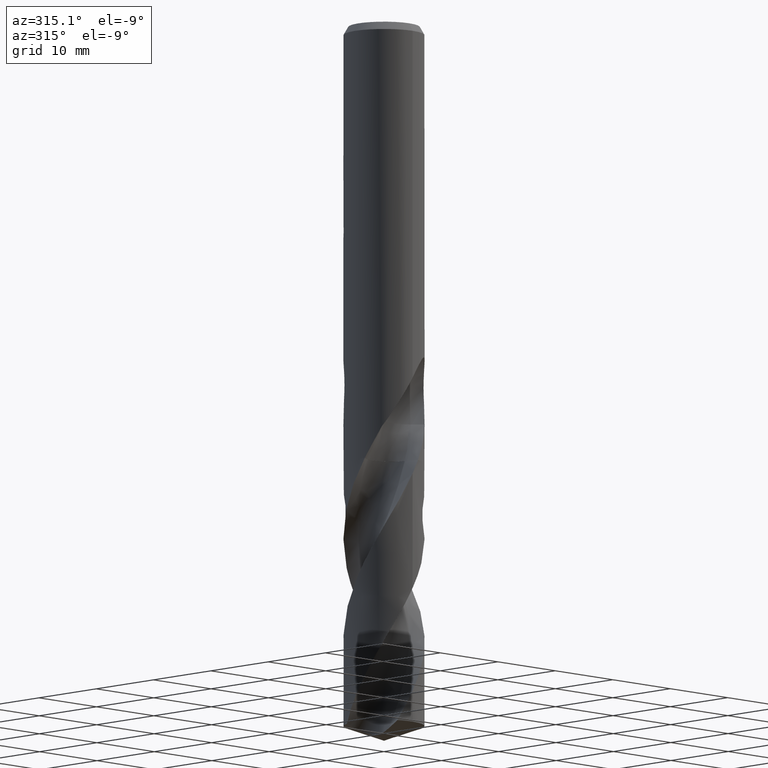
[diagram: clean part render]
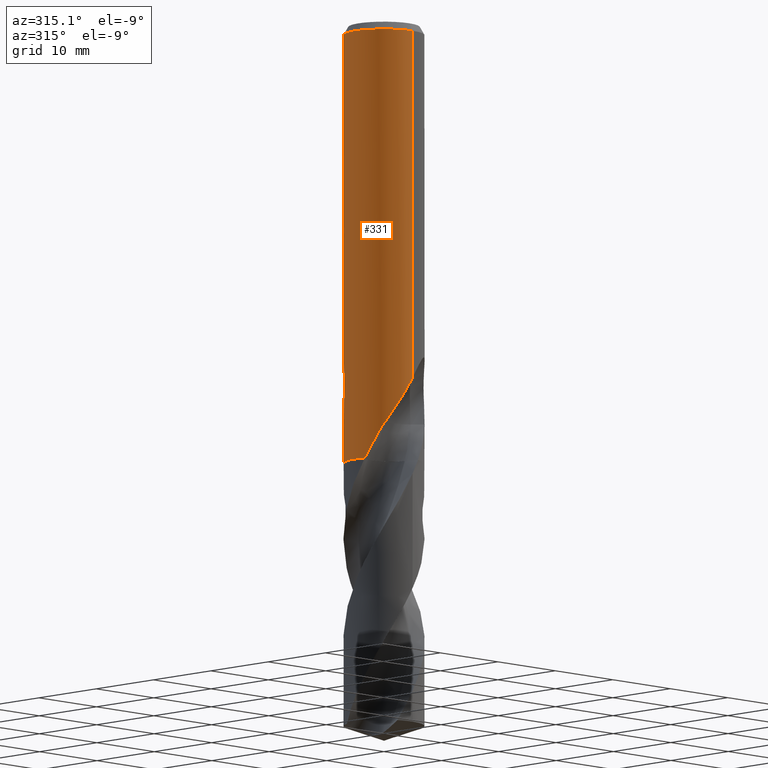
[diagram: same view with one face highlighted and labeled with its STEP entity id]
A machine part, auxiliary view. The second image highlights one B-rep face of the part: STEP entity #331.
In plain terms, the highlighted cylindrical surface (partial cylindrical patch) has radius 5 mm, axis along (-0, -0, 1).
Its self-contained STEP definition (entity closure, byte-faithful):
#309=EDGE_CURVE('',#735,#339,#840,.T.);
#315=VERTEX_POINT('',#846);
#327=EDGE_CURVE('',#427,#485,#860,.T.);
#331=ADVANCED_FACE('',(#864),#865,.T.);
#339=VERTEX_POINT('',#873);
#343=EDGE_CURVE('',#627,#637,#878,.T.);
#345=VERTEX_POINT('',#880);
#353=EDGE_CURVE('',#637,#451,#890,.T.);
#357=EDGE_CURVE('',#345,#605,#894,.T.);
#381=VERTEX_POINT('',#921);
#427=VERTEX_POINT('',#974);
#431=EDGE_CURVE('',#605,#505,#978,.T.);
#441=VERTEX_POINT('',#990);
#451=VERTEX_POINT('',#1001);
#485=VERTEX_POINT('',#1038);
#505=VERTEX_POINT('',#1059);
#519=VERTEX_POINT('',#1073);
#523=EDGE_CURVE('',#315,#519,#1077,.T.);
#531=EDGE_CURVE('',#677,#721,#1085,.T.);
#541=EDGE_CURVE('',#441,#715,#1095,.T.);
#575=VERTEX_POINT('',#1130);
#587=EDGE_CURVE('',#721,#779,#1144,.T.);
#599=EDGE_CURVE('',#757,#735,#1158,.T.);
#605=VERTEX_POINT('',#1166);
#613=EDGE_CURVE('',#505,#677,#1175,.T.);
#617=EDGE_CURVE('',#485,#381,#1179,.T.);
#627=VERTEX_POINT('',#1192);
#637=VERTEX_POINT('',#1203);
#653=EDGE_CURVE('',#451,#575,#1220,.T.);
#665=EDGE_CURVE('',#339,#427,#1233,.T.);
#677=VERTEX_POINT('',#1246);
#703=EDGE_CURVE('',#381,#315,#1274,.T.);
#715=VERTEX_POINT('',#1287);
#721=VERTEX_POINT('',#1294);
#735=VERTEX_POINT('',#1308);
#739=EDGE_CURVE('',#779,#627,#1312,.T.);
#745=EDGE_CURVE('',#519,#345,#1318,.T.);
#757=VERTEX_POINT('',#1333);
#763=EDGE_CURVE('',#575,#441,#1339,.T.);
#779=VERTEX_POINT('',#1356);
#787=EDGE_CURVE('',#757,#715,#1364,.T.);
#840=B_SPLINE_CURVE_WITH_KNOTS('',3,(#1467,#1468,#1469,#1470,#1471,#1472,#1473,#1474,#1475,#1476,#1477,#1478,#1479,#1480,#1481,#1482,#1483,#1484,#1485,#1486,#1487,#1488,#1489,#1490,#1491,#1492,#1493,#1494,#1495,#1496),.UNSPECIFIED.,.F.,.F.,(4,2,2,2,2,2,2,2,2,2,2,2,2,2,4),(0.0,2.4497184395459,3.78732227231862,4.99885466203334,6.40636361474201,8.09710413551417,9.56249771143069,10.2265642104242,10.7119158069651,11.1712003441123,11.7538301535774,12.6062411907478,13.8180437081641,14.6110373395728,15.4444197650673),.UNSPECIFIED.);
#846=CARTESIAN_POINT('',(-3.54362577285888,3.52742347641027,-26.4220412980564));
#860=CIRCLE('',#1561,5.0);
#864=FACE_OUTER_BOUND('',#1571,.T.);
#865=CYLINDRICAL_SURFACE('',#1572,5.0);
#873=CARTESIAN_POINT('',(1.48556251393199E-012,-5.0,-44.2501144457999));
#878=B_SPLINE_CURVE_WITH_KNOTS('',3,(#2095,#2096,#2097,#2098,#2099,#2100,#2101,#2102,#2103,#2104,#2105,#2106,#2107,#2108,#2109,#2110),.UNSPECIFIED.,.F.,.F.,(4,2,2,2,2,2,2,4),(5.87517564836087,6.18447732711524,6.49384941721167,6.80322150730809,7.11259359740452,7.42196568750094,7.73087791711931,8.03979014673767),.UNSPECIFIED.);
#880=CARTESIAN_POINT('',(-9.82055749138764E-015,5.0,-36.0232688117743));
#890=LINE('',#2125,#2126);
#894=B_SPLINE_CURVE_WITH_KNOTS('',3,(#2131,#2132,#2133,#2134,#2135,#2136,#2137,#2138,#2139,#2140,#2141,#2142,#2143,#2144,#2145,#2146,#2147,#2148,#2149,#2150,#2151,#2152,#2153,#2154,#2155,#2156,#2157),.UNSPECIFIED.,.F.,.F.,(4,2,3,2,2,2,2,2,2,2,2,2,4),(-0.542486104801738,-0.271243052400869,0.0,0.271243052400869,0.542486104801738,0.814298814936944,1.08611152507215,1.35696845964793,1.62782539422372,1.89896433698445,2.17010327974519,2.44124222250593,2.71238116526667),.UNSPECIFIED.);
#921=CARTESIAN_POINT('',(-3.83705374969661,3.20577892593035,-25.5617638699384));
#974=CARTESIAN_POINT('',(6.12303176911189E-016,-5.0,-1.0));
#978=B_SPLINE_CURVE_WITH_KNOTS('',3,(#3485,#3486,#3487,#3488,#3489,#3490,#3491,#3492,#3493,#3494,#3495,#3496,#3497,#3498,#3499,#3500,#3501,#3502,#3503,#3504,#3505,#3506,#3507,#3508,#3509,#3510,#3511),.UNSPECIFIED.,.F.,.F.,(4,2,3,2,2,2,2,2,2,2,2,2,4),(-0.542486104801738,-0.271243052400869,0.0,0.271243052400869,0.542486104801738,0.814298814936944,1.08611152507215,1.35696845964793,1.62782539422372,1.89896433698445,2.17010327974519,2.44124222250593,2.71238116526667),.UNSPECIFIED.);
#990=CARTESIAN_POINT('',(-3.4753867123766,3.59467483918034,-49.565));
#1001=CARTESIAN_POINT('',(-1.48556251393199E-012,5.0,-44.2501144457999));
#1038=CARTESIAN_POINT('',(-2.91341920609476,4.0634946203432,-1.0));
#1059=CARTESIAN_POINT('',(-0.562333990228013,4.96827741611056,-35.3171221986971));
#1073=CARTESIAN_POINT('',(-6.12303176911188E-016,5.0,-28.0011862850709));
#1077=ELLIPSE('',#4976,7.33139592819812,5.0);
#1085=B_SPLINE_CURVE_WITH_KNOTS('',3,(#4988,#4989,#4990,#4991,#4992,#4993,#4994,#4995,#4996,#4997,#4998,#4999,#5000,#5001),.UNSPECIFIED.,.F.,.F.,(4,2,2,2,2,2,4),(3.1333306003147,3.58067338374496,4.02801616717522,4.47535895060548,4.92178692976237,5.36821490891926,5.81712521768469),.UNSPECIFIED.);
#1095=B_SPLINE_CURVE_WITH_KNOTS('',3,(#5022,#5023,#5024,#5025,#5026,#5027,#5028,#5029,#5030,#5031,#5032,#5033,#5034,#5035),.UNSPECIFIED.,.F.,.F.,(4,2,2,2,2,2,4),(0.0,1.4113013467408,1.86634793685902,2.75693695011766,4.11701356516536,4.28586611442406,5.47416386129505),.UNSPECIFIED.);
#1130=CARTESIAN_POINT('',(-4.06821081647643,2.90683001785523,-46.8270988560816));
#1144=LINE('',#5449,#5450);
#1158=B_SPLINE_CURVE_WITH_KNOTS('',3,(#5700,#5701,#5702,#5703,#5704,#5705,#5706,#5707,#5708,#5709,#5710,#5711,#5712,#5713),.UNSPECIFIED.,.F.,.F.,(4,2,2,2,2,2,4),(0.0,0.700527966064974,1.79769165740845,2.77274337290494,3.92289981871584,10.7026535828742,20.3836932720439),.UNSPECIFIED.);
#1166=CARTESIAN_POINT('',(-0.486378944383044,4.97628732314171,-35.6432837483006));
#1175=CIRCLE('',#6431,5.0);
#1179=ELLIPSE('',#6510,143.26854173922,5.0);
#1192=CARTESIAN_POINT('',(-1.337052752443,4.81791344226778,-37.3720803908795));
#1203=CARTESIAN_POINT('',(-4.2179236924284E-015,5.0,-38.0310253601033));
#1220=B_SPLINE_CURVE_WITH_KNOTS('',3,(#6730,#6731,#6732,#6733,#6734,#6735,#6736,#6737,#6738,#6739,#6740,#6741,#6742,#6743,#6744,#6745,#6746,#6747,#6748,#6749,#6750,#6751,#6752,#6753,#6754,#6755,#6756,#6757,#6758,#6759),.UNSPECIFIED.,.F.,.F.,(4,2,2,2,2,2,2,2,2,2,2,2,2,2,4),(0.0,2.44971843954591,3.7873222723187,4.99885466203345,6.40636361474204,8.0971041355139,9.56249771143035,10.2265642104238,10.7119158069646,11.1712003441117,11.753830153577,12.6062411907474,13.8180437081639,14.611037339573,15.444419765068),.UNSPECIFIED.);
#1233=LINE('',#6800,#6801);
#1246=CARTESIAN_POINT('',(-1.0350734039088,4.89168918151191,-35.3171221986971));
#1274=B_SPLINE_CURVE_WITH_KNOTS('',3,(#6907,#6908,#6909,#6910,#6911,#6912,#6913,#6914,#6915,#6916),.UNSPECIFIED.,.F.,.F.,(4,2,2,2,4),(4.56577962706575,4.85616090215628,5.14654217724682,5.43692345233735,5.82339888408011),.UNSPECIFIED.);
#1287=CARTESIAN_POINT('',(-1.04093319368125,4.89044559179351,-54.4));
#1294=CARTESIAN_POINT('',(-1.03127136200798E-015,5.0,-36.5000801551882));
#1308=CARTESIAN_POINT('',(-3.18607244924171,-3.85343254101884,-49.565));
#1312=ELLIPSE('',#7464,5.5746421602143,5.0);
#1318=LINE('',#7471,#7472);
#1333=CARTESIAN_POINT('',(-4.78535147944362,-1.44927955142781,-54.4));
#1339=B_SPLINE_CURVE_WITH_KNOTS('',3,(#7495,#7496,#7497,#7498),.UNSPECIFIED.,.F.,.F.,(4,4),(0.0,2.87359950649857),.UNSPECIFIED.);
#1356=CARTESIAN_POINT('',(-6.12303176911189E-016,5.0,-36.7128911336578));
#1364=CIRCLE('',#7633,5.0);
#1467=CARTESIAN_POINT('',(-3.18607244924171,-3.85343254101884,-49.565));
#1468=CARTESIAN_POINT('',(-2.85625445611022,-4.12613071595629,-48.8695526935702));
#1469=CARTESIAN_POINT('',(-2.47703856885131,-4.36854043294652,-48.2211713196178));
#1470=CARTESIAN_POINT('',(-1.81579915443099,-4.66566442446862,-47.138005997335));
#1471=CARTESIAN_POINT('',(-1.57785411026249,-4.75113578318713,-46.7569119660956));
#1472=CARTESIAN_POINT('',(-1.11722259169624,-4.87887566369602,-46.0192128316445));
#1473=CARTESIAN_POINT('',(-0.89659281814228,-4.9240058582178,-45.6660462331204));
#1474=CARTESIAN_POINT('',(-0.419022322585475,-4.98913983717463,-44.9048785720036));
#1475=CARTESIAN_POINT('',(-0.158092444922131,-5.00443147882401,-44.490919460658));
#1476=CARTESIAN_POINT('',(0.421366124916152,-4.99224268123203,-43.6053241941917));
#1477=CARTESIAN_POINT('',(0.764926555280542,-4.95454322940679,-43.1014107767617));
#1478=CARTESIAN_POINT('',(1.42743838040767,-4.80229497474226,-42.2704923951024));
#1479=CARTESIAN_POINT('',(1.79397957869578,-4.68630108750048,-41.8650368539511));
#1480=CARTESIAN_POINT('',(2.34873617524855,-4.41818492332311,-41.4853684340442));
#1481=CARTESIAN_POINT('',(2.53236436009185,-4.31696486059904,-41.3915371394018));
#1482=CARTESIAN_POINT('',(2.85412313903686,-4.10855027503912,-41.319457948653));
#1483=CARTESIAN_POINT('',(2.98609447476205,-4.01363671583658,-41.3181120973668));
#1484=CARTESIAN_POINT('',(3.23189820912499,-3.81813460960386,-41.3811965770415));
#1485=CARTESIAN_POINT('',(3.33940049461099,-3.72371100151111,-41.4403438364649));
#1486=CARTESIAN_POINT('',(3.55816645014597,-3.51678905170116,-41.6254087702394));
#1487=CARTESIAN_POINT('',(3.65937747991305,-3.40955691248744,-41.7620459115826));
#1488=CARTESIAN_POINT('',(3.86669039079413,-3.17540770717443,-42.1362008128703));
#1489=CARTESIAN_POINT('',(3.96578183188774,-3.0478967300382,-42.4137131712858));
#1490=CARTESIAN_POINT('',(4.15211961116781,-2.79185633693404,-43.1901619048559));
#1491=CARTESIAN_POINT('',(4.2194850183844,-2.68279548595851,-43.7431383070586));
#1492=CARTESIAN_POINT('',(4.25282809849582,-2.62946232971101,-44.7665613266457));
#1493=CARTESIAN_POINT('',(4.2449881837555,-2.64246163236228,-45.1741388235467));
#1494=CARTESIAN_POINT('',(4.18961389418805,-2.72945556171016,-46.0013175314454));
#1495=CARTESIAN_POINT('',(4.14017122200964,-2.8061189001256,-46.417805346279));
#1496=CARTESIAN_POINT('',(4.06821081647643,-2.90683001785522,-46.8270988560816));
#1561=AXIS2_PLACEMENT_3D('',#7688,#7689,#7690);
#1571=EDGE_LOOP('',(#7692,#7693,#7694,#7695,#7696,#7697,#7698,#7699,#7700,#7701,#7702,#7703,#7704,#7705,#7706,#7707,#7708,#7709,#7710,#7711));
#1572=AXIS2_PLACEMENT_3D('',#7712,#7713,#7714);
#2095=CARTESIAN_POINT('',(-1.37919625933141,4.80601890115366,-37.3124404256203));
#2096=CARTESIAN_POINT('',(-1.31957521374487,4.82312851403775,-37.4009601597598));
#2097=CARTESIAN_POINT('',(-1.25205684175205,4.84126211135571,-37.4821654513649));
#2098=CARTESIAN_POINT('',(-1.10836495207318,4.87616599259845,-37.6259115514073));
#2099=CARTESIAN_POINT('',(-1.0271524301646,4.89418890879516,-37.693486795378));
#2100=CARTESIAN_POINT('',(-0.850055905397219,4.9280353232664,-37.8128453591325));
#2101=CARTESIAN_POINT('',(-0.754172188044363,4.94382885968066,-37.8646375967458));
#2102=CARTESIAN_POINT('',(-0.553725999780852,4.97027232652294,-37.9480281920328));
#2103=CARTESIAN_POINT('',(-0.448990720596507,4.98092390938096,-37.9796924022892));
#2104=CARTESIAN_POINT('',(-0.237871423561604,4.99545922254228,-38.0213202804398));
#2105=CARTESIAN_POINT('',(-0.13148454027928,4.99933459384723,-38.0312723335086));
#2106=CARTESIAN_POINT('',(0.0746069172274575,5.00050365281921,-38.0312723335086));
#2107=CARTESIAN_POINT('',(0.180879006433096,4.99784409598263,-38.021349312763));
#2108=CARTESIAN_POINT('',(0.391840688075154,4.98574204084828,-37.9798000876985));
#2109=CARTESIAN_POINT('',(0.496532945230264,4.97630796240248,-37.9481849619546));
#2110=CARTESIAN_POINT('',(0.596736821506944,4.96426280185264,-37.9065357940623));
#2125=CARTESIAN_POINT('',(-6.12303176911189E-016,5.0,-47.2));
#2126=VECTOR('',#7739,1.0);
#2131=CARTESIAN_POINT('',(0.665122770091172,4.95556371169883,-34.8135963457478));
#2132=CARTESIAN_POINT('',(0.728735196954596,4.94702581852882,-34.8772777273236));
#2133=CARTESIAN_POINT('',(0.783964166103465,4.93829748078097,-34.9579436035979));
#2134=CARTESIAN_POINT('',(0.857301933462898,4.92609533329604,-35.1349114173306));
#2135=CARTESIAN_POINT('',(0.875400981188567,4.92277087849253,-35.2312276617865));
#2136=CARTESIAN_POINT('',(0.875400981188567,4.92277087849253,-35.3216420125868));
#2137=CARTESIAN_POINT('',(0.875400981188567,4.92277087849253,-35.4120563633871));
#2138=CARTESIAN_POINT('',(0.857301933462898,4.92609533329604,-35.5083726078429));
#2139=CARTESIAN_POINT('',(0.783964166103465,4.93829748078097,-35.6853404215757));
#2140=CARTESIAN_POINT('',(0.728735196954596,4.94702581852882,-35.76600629785));
#2141=CARTESIAN_POINT('',(0.601376746032753,4.96411953593411,-35.8935028030135));
#2142=CARTESIAN_POINT('',(0.520641197115554,4.97361399538109,-35.9488552844728));
#2143=CARTESIAN_POINT('',(0.343503822480858,4.98897870858442,-36.0223670116056));
#2144=CARTESIAN_POINT('',(0.247086219827461,4.9947129574863,-36.0405166027747));
#2145=CARTESIAN_POINT('',(0.0662849978754683,5.00037576555244,-36.0405166027747));
#2146=CARTESIAN_POINT('',(-0.0299853354073752,5.00069421157822,-36.022481035651));
#2147=CARTESIAN_POINT('',(-0.207042529230845,4.99649628332508,-35.9491606175219));
#2148=CARTESIAN_POINT('',(-0.287834149954029,4.99211780487336,-35.8938794313977));
#2149=CARTESIAN_POINT('',(-0.415469449620835,4.98311973872716,-35.7663325263823));
#2150=CARTESIAN_POINT('',(-0.470822894462521,4.97792007270922,-35.6855206130663));
#2151=CARTESIAN_POINT('',(-0.544264412763406,4.97042641093864,-35.5083690868499));
#2152=CARTESIAN_POINT('',(-0.562348199187247,4.96827580785033,-35.4120216601737));
#2153=CARTESIAN_POINT('',(-0.562348199187247,4.96827580785033,-35.2312623649999));
#2154=CARTESIAN_POINT('',(-0.544264412763406,4.97042641093864,-35.1349149383237));
#2155=CARTESIAN_POINT('',(-0.470822894462521,4.97792007270922,-34.9577634121072));
#2156=CARTESIAN_POINT('',(-0.415469449620836,4.98311973872716,-34.8769514987913));
#2157=CARTESIAN_POINT('',(-0.351618594554054,4.98762111271133,-34.8131448640467));
#3485=CARTESIAN_POINT('',(0.665122770091172,4.95556371169883,-34.8135963457478));
#3486=CARTESIAN_POINT('',(0.728735196954596,4.94702581852882,-34.8772777273236));
#3487=CARTESIAN_POINT('',(0.783964166103465,4.93829748078097,-34.9579436035979));
#3488=CARTESIAN_POINT('',(0.857301933462898,4.92609533329604,-35.1349114173306));
#3489=CARTESIAN_POINT('',(0.875400981188567,4.92277087849253,-35.2312276617865));
#3490=CARTESIAN_POINT('',(0.875400981188567,4.92277087849253,-35.3216420125868));
#3491=CARTESIAN_POINT('',(0.875400981188567,4.92277087849253,-35.4120563633871));
#3492=CARTESIAN_POINT('',(0.857301933462898,4.92609533329604,-35.5083726078429));
#3493=CARTESIAN_POINT('',(0.783964166103465,4.93829748078097,-35.6853404215757));
#3494=CARTESIAN_POINT('',(0.728735196954596,4.94702581852882,-35.76600629785));
#3495=CARTESIAN_POINT('',(0.601376746032753,4.96411953593411,-35.8935028030135));
#3496=CARTESIAN_POINT('',(0.520641197115554,4.97361399538109,-35.9488552844728));
#3497=CARTESIAN_POINT('',(0.343503822480858,4.98897870858442,-36.0223670116056));
#3498=CARTESIAN_POINT('',(0.247086219827461,4.9947129574863,-36.0405166027747));
#3499=CARTESIAN_POINT('',(0.0662849978754683,5.00037576555244,-36.0405166027747));
#3500=CARTESIAN_POINT('',(-0.0299853354073752,5.00069421157822,-36.022481035651));
#3501=CARTESIAN_POINT('',(-0.207042529230845,4.99649628332508,-35.9491606175219));
#3502=CARTESIAN_POINT('',(-0.287834149954029,4.99211780487336,-35.8938794313977));
#3503=CARTESIAN_POINT('',(-0.415469449620835,4.98311973872716,-35.7663325263823));
#3504=CARTESIAN_POINT('',(-0.470822894462521,4.97792007270922,-35.6855206130663));
#3505=CARTESIAN_POINT('',(-0.544264412763406,4.97042641093864,-35.5083690868499));
#3506=CARTESIAN_POINT('',(-0.562348199187247,4.96827580785033,-35.4120216601737));
#3507=CARTESIAN_POINT('',(-0.562348199187247,4.96827580785033,-35.2312623649999));
#3508=CARTESIAN_POINT('',(-0.544264412763406,4.97042641093864,-35.1349149383237));
#3509=CARTESIAN_POINT('',(-0.470822894462521,4.97792007270922,-34.9577634121072));
#3510=CARTESIAN_POINT('',(-0.415469449620836,4.98311973872716,-34.8769514987913));
#3511=CARTESIAN_POINT('',(-0.351618594554054,4.98762111271133,-34.8131448640467));
#4976=AXIS2_PLACEMENT_3D('',#7933,#7934,#7935);
#4988=CARTESIAN_POINT('',(-0.94469265800956,4.90994458032907,-34.8726918261735));
#4989=CARTESIAN_POINT('',(-1.00520381961469,4.89830199881157,-35.0184504386447));
#4990=CARTESIAN_POINT('',(-1.03510901790186,4.89168164551397,-35.1771875995894));
#4991=CARTESIAN_POINT('',(-1.03510901790186,4.89168164551397,-35.4754161218762));
#4992=CARTESIAN_POINT('',(-1.00520381961469,4.89830199881157,-35.6341532828209));
#4993=CARTESIAN_POINT('',(-0.884181496404448,4.92158716184659,-35.9256705077633));
#4994=CARTESIAN_POINT('',(-0.793087151052211,4.93783860177885,-36.058492898329));
#4995=CARTESIAN_POINT('',(-0.583306946064695,4.96698544190891,-36.2680190096183));
#4996=CARTESIAN_POINT('',(-0.4505605241988,4.98179488059623,-36.3589053581256));
#4997=CARTESIAN_POINT('',(-0.159315965562919,4.99959032724121,-36.4795914963682));
#4998=CARTESIAN_POINT('',(-0.000786407488332613,5.0022138695964,-36.5093686300866));
#4999=CARTESIAN_POINT('',(0.297528991236319,4.99338238693841,-36.5093686300866));
#5000=CARTESIAN_POINT('',(0.45644235283975,4.98128588348605,-36.4792943689047));
#5001=CARTESIAN_POINT('',(0.602168559078807,4.96360685655673,-36.4187026676641));
#5022=CARTESIAN_POINT('',(-3.4753867123766,3.59467483918033,-49.565));
#5023=CARTESIAN_POINT('',(-3.31438666904052,3.75033214793148,-49.9787121363428));
#5024=CARTESIAN_POINT('',(-3.14165816450858,3.89750538683847,-50.38217765441));
#5025=CARTESIAN_POINT('',(-2.87854395124644,4.0890440285902,-50.9323319594654));
#5026=CARTESIAN_POINT('',(-2.81318112516669,4.13428862399009,-51.0656531076197));
#5027=CARTESIAN_POINT('',(-2.61657921713137,4.26353859756224,-51.4610728251986));
#5028=CARTESIAN_POINT('',(-2.48525290345931,4.34128557404574,-51.7211677980989));
#5029=CARTESIAN_POINT('',(-2.14520942716583,4.52242007036963,-52.3866864494377));
#5030=CARTESIAN_POINT('',(-1.93213318088636,4.61751978692687,-52.7917972119024));
#5031=CARTESIAN_POINT('',(-1.68528290478559,4.70751139231408,-53.2453159470819));
#5032=CARTESIAN_POINT('',(-1.65792829801031,4.7172147981541,-53.2953631919445));
#5033=CARTESIAN_POINT('',(-1.43749203441114,4.79325594434787,-53.6973440683841));
#5034=CARTESIAN_POINT('',(-1.24060401738251,4.84794558145719,-54.0479901669791));
#5035=CARTESIAN_POINT('',(-1.04093319368125,4.89044559179349,-54.4));
#5449=CARTESIAN_POINT('',(-6.12303176911189E-016,5.0,-47.2));
#5450=VECTOR('',#7972,1.0);
#5700=CARTESIAN_POINT('',(-4.78535147944361,-1.44927955142781,-54.4));
#5701=CARTESIAN_POINT('',(-4.75157912961996,-1.5607918983961,-54.1976363957327));
#5702=CARTESIAN_POINT('',(-4.71372458021011,-1.67173906110842,-53.9955493189132));
#5703=CARTESIAN_POINT('',(-4.60585715888633,-1.95453391930696,-53.4783148021993));
#5704=CARTESIAN_POINT('',(-4.5330505436001,-2.11764524501904,-53.1811021094831));
#5705=CARTESIAN_POINT('',(-4.37672255392546,-2.42287804419727,-52.598261249674));
#5706=CARTESIAN_POINT('',(-4.29747101518856,-2.56048662294728,-52.3243561413395));
#5707=CARTESIAN_POINT('',(-4.11435965478758,-2.84709047314721,-51.7198095669362));
#5708=CARTESIAN_POINT('',(-4.04117764858643,-2.94449404039803,-51.4799724435419));
#5709=CARTESIAN_POINT('',(-3.90148666777889,-3.13349252600735,-51.0169659011154));
#5710=CARTESIAN_POINT('',(-3.78592667351226,-3.26931082667324,-50.7145067911263));
#5711=CARTESIAN_POINT('',(-3.54467826874922,-3.53261485422065,-50.162685928491));
#5712=CARTESIAN_POINT('',(-3.37962596655455,-3.69339975923276,-49.85821685648));
#5713=CARTESIAN_POINT('',(-3.18607244924171,-3.85343254101884,-49.565));
#6431=AXIS2_PLACEMENT_3D('',#8034,#8035,#8036);
#6510=AXIS2_PLACEMENT_3D('',#8037,#8038,#8039);
#6730=CARTESIAN_POINT('',(3.18607244924171,3.85343254101884,-49.565));
#6731=CARTESIAN_POINT('',(2.85625445611022,4.12613071595629,-48.8695526935702));
#6732=CARTESIAN_POINT('',(2.47703856885131,4.36854043294652,-48.2211713196178));
#6733=CARTESIAN_POINT('',(1.81579915443098,4.66566442446862,-47.138005997335));
#6734=CARTESIAN_POINT('',(1.57785411026247,4.75113578318713,-46.7569119660955));
#6735=CARTESIAN_POINT('',(1.11722259169627,4.87887566369601,-46.0192128316446));
#6736=CARTESIAN_POINT('',(0.896592818142335,4.92400585821779,-45.6660462331205));
#6737=CARTESIAN_POINT('',(0.41902232258544,4.98913983717464,-44.9048785720036));
#6738=CARTESIAN_POINT('',(0.158092444922123,5.00443147882401,-44.490919460658));
#6739=CARTESIAN_POINT('',(-0.421366124916096,4.99224268123203,-43.6053241941917));
#6740=CARTESIAN_POINT('',(-0.764926555280523,4.9545432294068,-43.1014107767617));
#6741=CARTESIAN_POINT('',(-1.42743838040771,4.80229497474226,-42.2704923951023));
#6742=CARTESIAN_POINT('',(-1.79397957869579,4.68630108750047,-41.8650368539511));
#6743=CARTESIAN_POINT('',(-2.34873617524853,4.41818492332311,-41.4853684340443));
#6744=CARTESIAN_POINT('',(-2.53236436009185,4.31696486059904,-41.3915371394018));
#6745=CARTESIAN_POINT('',(-2.85412313903685,4.10855027503912,-41.319457948653));
#6746=CARTESIAN_POINT('',(-2.98609447476204,4.01363671583658,-41.3181120973668));
#6747=CARTESIAN_POINT('',(-3.23189820912501,3.81813460960383,-41.3811965770415));
#6748=CARTESIAN_POINT('',(-3.33940049461103,3.72371100151107,-41.440343836465));
#6749=CARTESIAN_POINT('',(-3.55816645014596,3.51678905170117,-41.6254087702394));
#6750=CARTESIAN_POINT('',(-3.65937747991303,3.40955691248747,-41.7620459115826));
#6751=CARTESIAN_POINT('',(-3.86669039079412,3.17540770717445,-42.1362008128703));
#6752=CARTESIAN_POINT('',(-3.96578183188773,3.04789673003821,-42.4137131712858));
#6753=CARTESIAN_POINT('',(-4.15211961116785,2.79185633693398,-43.1901619048561));
#6754=CARTESIAN_POINT('',(-4.21948501838441,2.6827954859585,-43.7431383070589));
#6755=CARTESIAN_POINT('',(-4.25282809849582,2.62946232971101,-44.7665613266458));
#6756=CARTESIAN_POINT('',(-4.2449881837555,2.64246163236229,-45.1741388235467));
#6757=CARTESIAN_POINT('',(-4.18961389418805,2.72945556171017,-46.0013175314454));
#6758=CARTESIAN_POINT('',(-4.14017122200963,2.8061189001256,-46.417805346279));
#6759=CARTESIAN_POINT('',(-4.06821081647643,2.90683001785522,-46.8270988560816));
#6800=CARTESIAN_POINT('',(6.12303176911189E-016,-5.0,-47.2));
#6801=VECTOR('',#8096,1.0);
#6907=CARTESIAN_POINT('',(-3.80561094633861,3.24304260303619,-25.3040708253683));
#6908=CARTESIAN_POINT('',(-3.82727183139471,3.21762421227073,-25.4026656169036));
#6909=CARTESIAN_POINT('',(-3.83766437316493,3.20504791835327,-25.5068495076179));
#6910=CARTESIAN_POINT('',(-3.83766437316493,3.20504791835327,-25.7004370243449));
#6911=CARTESIAN_POINT('',(-3.82727183139471,3.21762421227073,-25.8046209150592));
#6912=CARTESIAN_POINT('',(-3.78395006128267,3.26846099380161,-26.0018104981297));
#6913=CARTESIAN_POINT('',(-3.75097198391672,3.30657581587786,-26.0948429812535));
#6914=CARTESIAN_POINT('',(-3.66218514708417,3.40501531873085,-26.2774092731815));
#6915=CARTESIAN_POINT('',(-3.59343628541809,3.47852767883522,-26.3745350059696));
#6916=CARTESIAN_POINT('',(-3.5124810915168,3.55843737920691,-26.4540846778413));
#7464=AXIS2_PLACEMENT_3D('',#8154,#8155,#8156);
#7471=CARTESIAN_POINT('',(-6.12303176911189E-016,5.0,-47.2));
#7472=VECTOR('',#8157,1.0);
#7495=CARTESIAN_POINT('',(-4.06821081652905,2.90683001778158,-46.8270988561106));
#7496=CARTESIAN_POINT('',(-3.90701493757903,3.13242931815789,-47.7439571222844));
#7497=CARTESIAN_POINT('',(-3.7127308177955,3.36520692145851,-48.666271574145));
#7498=CARTESIAN_POINT('',(-3.4753867123766,3.59467483918034,-49.565));
#7633=AXIS2_PLACEMENT_3D('',#8205,#8206,#8207);
#7688=CARTESIAN_POINT('',(0.0,0.0,-1.0));
#7689=DIRECTION('',(0.0,0.0,-1.0));
#7690=DIRECTION('',(0.0,1.0,0.0));
#7692=ORIENTED_EDGE('',*,*,#745,.T.);
#7693=ORIENTED_EDGE('',*,*,#357,.T.);
#7694=ORIENTED_EDGE('',*,*,#431,.T.);
#7695=ORIENTED_EDGE('',*,*,#613,.T.);
#7696=ORIENTED_EDGE('',*,*,#531,.T.);
#7697=ORIENTED_EDGE('',*,*,#587,.T.);
#7698=ORIENTED_EDGE('',*,*,#739,.T.);
#7699=ORIENTED_EDGE('',*,*,#343,.T.);
#7700=ORIENTED_EDGE('',*,*,#353,.T.);
#7701=ORIENTED_EDGE('',*,*,#653,.T.);
#7702=ORIENTED_EDGE('',*,*,#763,.T.);
#7703=ORIENTED_EDGE('',*,*,#541,.T.);
#7704=ORIENTED_EDGE('',*,*,#787,.F.);
#7705=ORIENTED_EDGE('',*,*,#599,.T.);
#7706=ORIENTED_EDGE('',*,*,#309,.T.);
#7707=ORIENTED_EDGE('',*,*,#665,.T.);
#7708=ORIENTED_EDGE('',*,*,#327,.T.);
#7709=ORIENTED_EDGE('',*,*,#617,.T.);
#7710=ORIENTED_EDGE('',*,*,#703,.T.);
#7711=ORIENTED_EDGE('',*,*,#523,.T.);
#7712=CARTESIAN_POINT('',(0.0,0.0,-47.2));
#7713=DIRECTION('',(-0.0,-0.0,1.0));
#7714=DIRECTION('',(0.0,1.0,0.0));
#7739=DIRECTION('',(0.0,0.0,-1.0));
#7933=CARTESIAN_POINT('',(0.0,0.0,-22.6393427349475));
#7934=DIRECTION('',(0.0,-0.73135370161917,-0.681998360062499));
#7935=DIRECTION('',(0.0,0.681998360062499,-0.73135370161917));
#7972=DIRECTION('',(0.0,0.0,-1.0));
#8034=CARTESIAN_POINT('',(0.0,0.0,-35.3171221986971));
#8035=DIRECTION('',(0.0,-0.0,1.0));
#8036=DIRECTION('',(0.0,1.0,0.0));
#8037=CARTESIAN_POINT('',(0.0,0.0,-117.363261161914));
#8038=DIRECTION('',(0.0,-0.999390827019096,0.0348994967025007));
#8039=DIRECTION('',(0.0,0.0348994967025007,0.999390827019096));
#8096=DIRECTION('',(-0.0,-0.0,1.0));
#8154=CARTESIAN_POINT('',(0.0,0.0,-36.7128911336578));
#8155=DIRECTION('',(-0.442195774284071,0.0,0.896918556617774));
#8156=DIRECTION('',(0.896918556617774,-0.0,0.442195774284071));
#8157=DIRECTION('',(0.0,0.0,-1.0));
#8205=CARTESIAN_POINT('',(0.0,0.0,-54.4));
#8206=DIRECTION('',(0.0,0.0,-1.0));
#8207=DIRECTION('',(0.0,1.0,0.0));